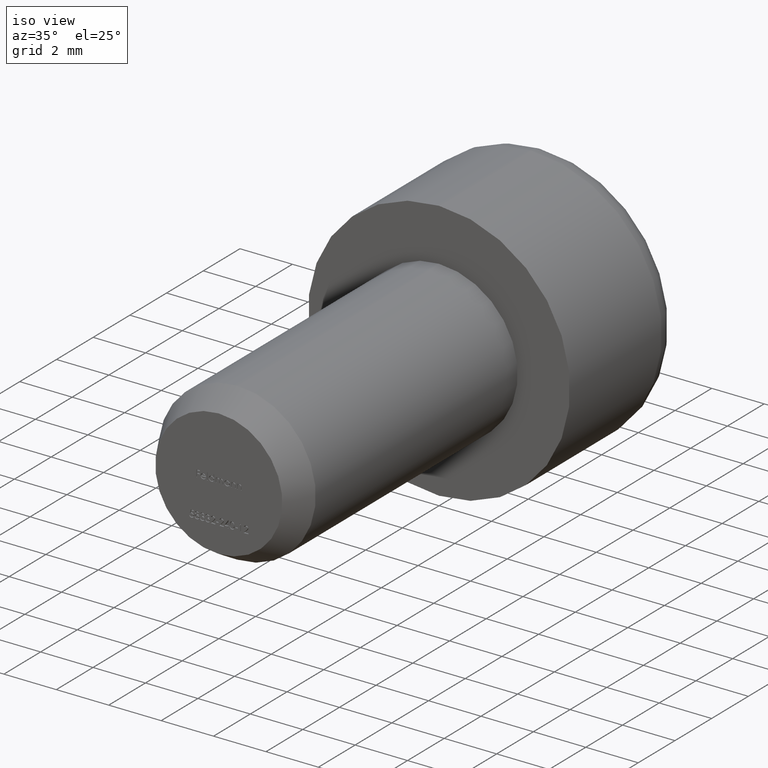
[diagram: clean part render]
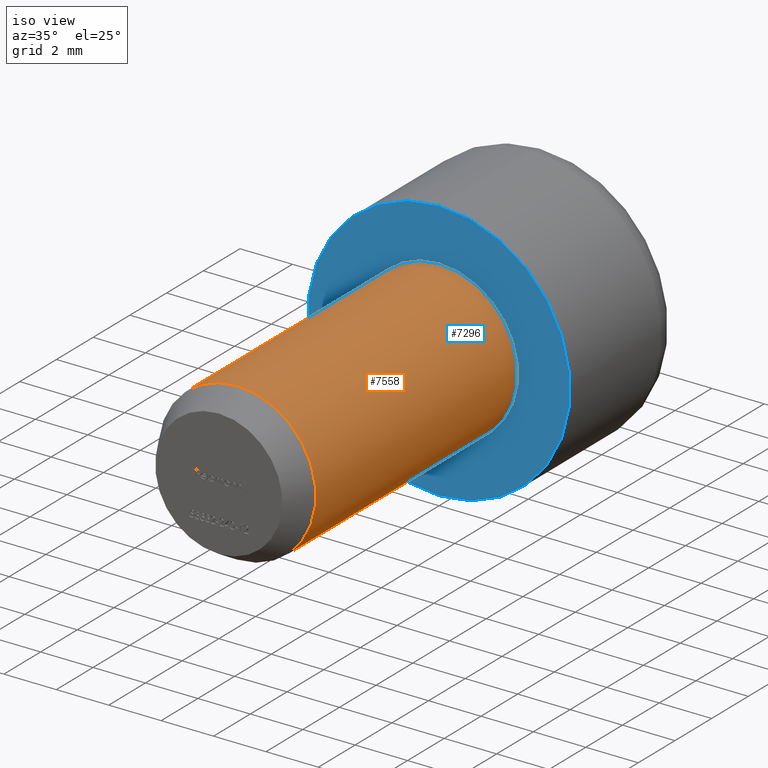
[diagram: same view with the hole feature highlighted: cylindrical wall and planar end face, labeled with their STEP entity ids]
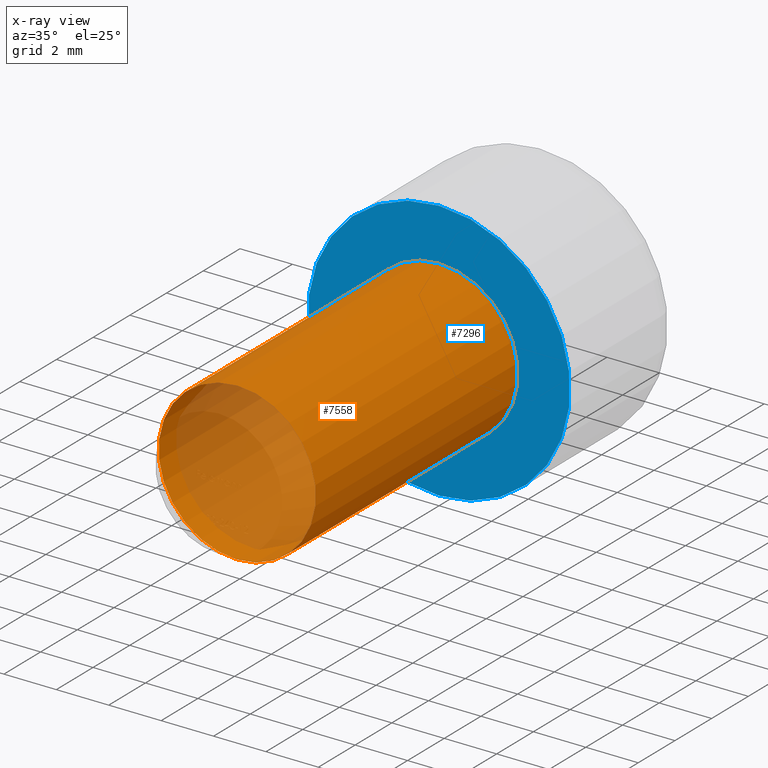
[diagram: x-ray of the same camera — body ghosted, the hole faces saturated]
A machine part, iso view. The highlighted faces form one hole feature of diameter 6 mm: the cylindrical wall (entity #7558, orange) and its adjacent planar end face (entity #7296, blue) — they share a circular edge in the B-rep.
The next image is the same camera in x-ray (body ghosted, the hole faces saturated) — the bore reads through the body.
Wall:
#473 = CARTESIAN_POINT ( 'NONE',  ( 0.0000000000000000000, 0.0000000000000000000, 0.0000000000000000000 ) ) ;
#954 = CARTESIAN_POINT ( 'NONE',  ( 0.0000000000000000000, -10.99999999999998900, 0.0000000000000000000 ) ) ;
#2237 = AXIS2_PLACEMENT_3D ( 'NONE', #473, #3236, #8498 ) ;
#2312 = DIRECTION ( 'NONE',  ( 0.0000000000000000000, 1.000000000000000000, 0.0000000000000000000 ) ) ;
#2468 = CARTESIAN_POINT ( 'NONE',  ( 0.0000000000000000000, -10.99999999999998900, -3.000000000000000400 ) ) ;
#3236 = DIRECTION ( 'NONE',  ( -0.0000000000000000000, -1.000000000000000000, -0.0000000000000000000 ) ) ;
#3773 = DIRECTION ( 'NONE',  ( 0.0000000000000000000, 0.0000000000000000000, -1.000000000000000000 ) ) ;
#3817 = ORIENTED_EDGE ( 'NONE', *, *, #14326, .T. ) ;
#3834 = AXIS2_PLACEMENT_3D ( 'NONE', #954, #2312, #3773 ) ;
#4634 = CARTESIAN_POINT ( 'NONE',  ( 0.0000000000000000000, -12.00000000000000000, 0.0000000000000000000 ) ) ;
#4874 = CYLINDRICAL_SURFACE ( 'NONE', #16771, 3.000000000000000400 ) ;
#6025 = DIRECTION ( 'NONE',  ( -0.0000000000000000000, 1.000000000000000000, -0.0000000000000000000 ) ) ;
#6657 = EDGE_CURVE ( 'NONE', #9874, #9874, #9166, .T. ) ;
#6928 = CARTESIAN_POINT ( 'NONE',  ( 0.0000000000000000000, 0.0000000000000000000, 3.000000000000000400 ) ) ;
#7558 = ADVANCED_FACE ( 'NONE', ( #14275, #17280 ), #4874, .T. ) ;
#8030 = EDGE_LOOP ( 'NONE', ( #3817 ) ) ;
#8140 = ORIENTED_EDGE ( 'NONE', *, *, #6657, .T. ) ;
#8498 = DIRECTION ( 'NONE',  ( 0.0000000000000000000, 0.0000000000000000000, 1.000000000000000000 ) ) ;
#9166 = CIRCLE ( 'NONE', #3834, 3.000000000000000400 ) ;
#9874 = VERTEX_POINT ( 'NONE', #2468 ) ;
#10334 = VERTEX_POINT ( 'NONE', #6928 ) ;
#12920 = EDGE_LOOP ( 'NONE', ( #8140 ) ) ;
#14275 = FACE_OUTER_BOUND ( 'NONE', #12920, .T. ) ;
#14326 = EDGE_CURVE ( 'NONE', #10334, #10334, #15233, .T. ) ;
#15233 = CIRCLE ( 'NONE', #2237, 3.000000000000000400 ) ;
#16771 = AXIS2_PLACEMENT_3D ( 'NONE', #4634, #6025, #16962 ) ;
#16962 = DIRECTION ( 'NONE',  ( 0.0000000000000000000, 0.0000000000000000000, 1.000000000000000000 ) ) ;
#17280 = FACE_OUTER_BOUND ( 'NONE', #8030, .T. ) ;
End face:
#473 = CARTESIAN_POINT ( 'NONE',  ( 0.0000000000000000000, 0.0000000000000000000, 0.0000000000000000000 ) ) ;
#836 = AXIS2_PLACEMENT_3D ( 'NONE', #14723, #6574, #13251 ) ;
#2237 = AXIS2_PLACEMENT_3D ( 'NONE', #473, #3236, #8498 ) ;
#2495 = CIRCLE ( 'NONE', #836, 5.000000000000000000 ) ;
#3160 = EDGE_LOOP ( 'NONE', ( #11987 ) ) ;
#3236 = DIRECTION ( 'NONE',  ( -0.0000000000000000000, -1.000000000000000000, -0.0000000000000000000 ) ) ;
#3353 = EDGE_LOOP ( 'NONE', ( #5815 ) ) ;
#5815 = ORIENTED_EDGE ( 'NONE', *, *, #7000, .F. ) ;
#6574 = DIRECTION ( 'NONE',  ( 0.0000000000000000000, 1.000000000000000000, 0.0000000000000000000 ) ) ;
#6928 = CARTESIAN_POINT ( 'NONE',  ( 0.0000000000000000000, 0.0000000000000000000, 3.000000000000000400 ) ) ;
#7000 = EDGE_CURVE ( 'NONE', #17604, #17604, #2495, .T. ) ;
#7296 = ADVANCED_FACE ( 'NONE', ( #15331, #11274 ), #8401, .F. ) ;
#8285 = DIRECTION ( 'NONE',  ( 0.0000000000000000000, -0.0000000000000000000, 1.000000000000000000 ) ) ;
#8401 = PLANE ( 'NONE',  #11259 ) ;
#8498 = DIRECTION ( 'NONE',  ( 0.0000000000000000000, 0.0000000000000000000, 1.000000000000000000 ) ) ;
#10334 = VERTEX_POINT ( 'NONE', #6928 ) ;
#11259 = AXIS2_PLACEMENT_3D ( 'NONE', #13833, #13774, #8285 ) ;
#11274 = FACE_OUTER_BOUND ( 'NONE', #3353, .T. ) ;
#11987 = ORIENTED_EDGE ( 'NONE', *, *, #14326, .F. ) ;
#13251 = DIRECTION ( 'NONE',  ( 0.0000000000000000000, 0.0000000000000000000, 1.000000000000000000 ) ) ;
#13774 = DIRECTION ( 'NONE',  ( 0.0000000000000000000, 1.000000000000000000, 0.0000000000000000000 ) ) ;
#13833 = CARTESIAN_POINT ( 'NONE',  ( 0.0000000000000000000, 0.0000000000000000000, 0.0000000000000000000 ) ) ;
#14326 = EDGE_CURVE ( 'NONE', #10334, #10334, #15233, .T. ) ;
#14723 = CARTESIAN_POINT ( 'NONE',  ( 0.0000000000000000000, 0.0000000000000000000, 0.0000000000000000000 ) ) ;
#14905 = CARTESIAN_POINT ( 'NONE',  ( 0.0000000000000000000, 0.0000000000000000000, 5.000000000000000000 ) ) ;
#15233 = CIRCLE ( 'NONE', #2237, 3.000000000000000400 ) ;
#15331 = FACE_BOUND ( 'NONE', #3160, .T. ) ;
#17604 = VERTEX_POINT ( 'NONE', #14905 ) ;